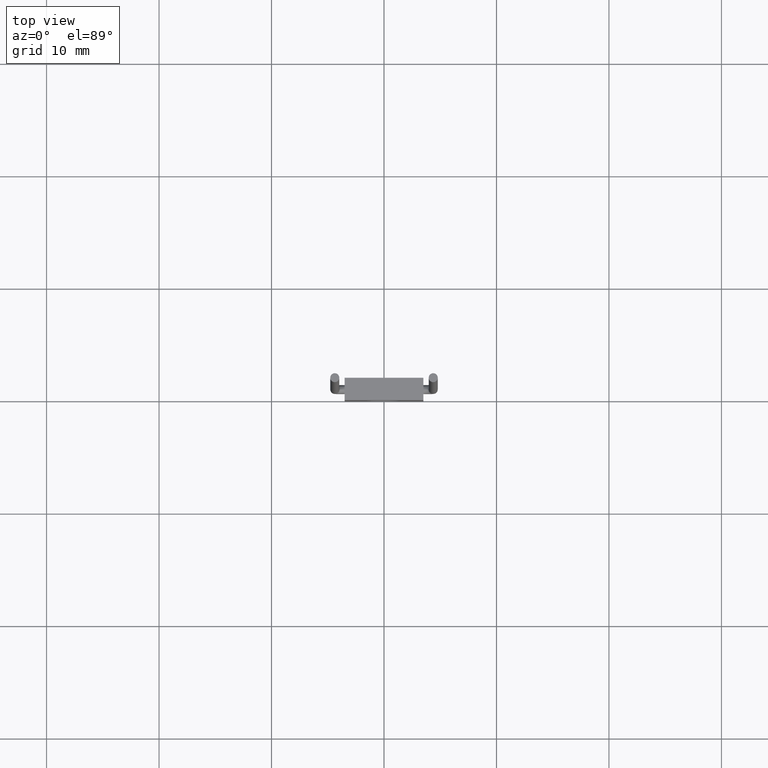
[diagram: clean part render]
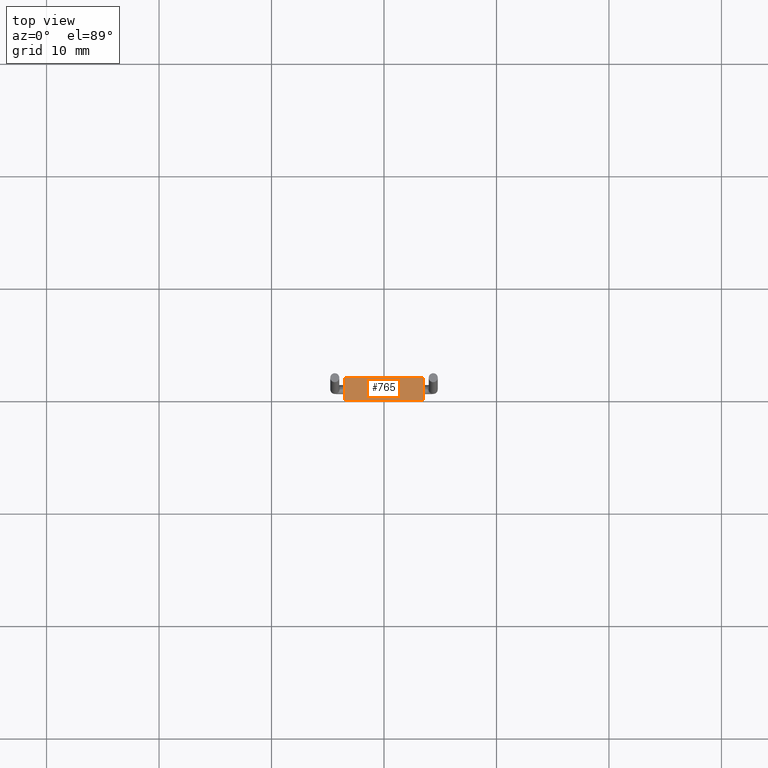
[diagram: same view with one face highlighted and labeled with its STEP entity id]
A machine part, top view. The second image highlights one B-rep face of the part: STEP entity #765.
In plain terms, the highlighted planar face has unit normal (-0, 0, -1).
Its self-contained STEP definition (entity closure, byte-faithful):
#98 = ORIENTED_EDGE ( 'NONE', *, *, #364, .F. ) ;
#109 = VERTEX_POINT ( 'NONE', #1162 ) ;
#112 = VERTEX_POINT ( 'NONE', #907 ) ;
#148 = ORIENTED_EDGE ( 'NONE', *, *, #628, .T. ) ;
#150 = LINE ( 'NONE', #867, #724 ) ;
#261 = VECTOR ( 'NONE', #503, 1000.000000000000000 ) ;
#364 = EDGE_CURVE ( 'NONE', #112, #109, #669, .T. ) ;
#379 = EDGE_LOOP ( 'NONE', ( #1002, #98, #402, #148 ) ) ;
#402 = ORIENTED_EDGE ( 'NONE', *, *, #1157, .F. ) ;
#414 = DIRECTION ( 'NONE',  ( -0.0000000000000000000, -1.000000000000000000, -0.0000000000000000000 ) ) ;
#451 = CARTESIAN_POINT ( 'NONE',  ( 3.500000000000000000, 2.000000000000000000, 3.500000000000000000 ) ) ;
#471 = EDGE_CURVE ( 'NONE', #1071, #109, #559, .T. ) ;
#479 = DIRECTION ( 'NONE',  ( -1.239088197126291300E-016, 0.0000000000000000000, -1.000000000000000000 ) ) ;
#486 = CARTESIAN_POINT ( 'NONE',  ( -3.499999999999999100, 0.0000000000000000000, 3.500000000000000900 ) ) ;
#503 = DIRECTION ( 'NONE',  ( 1.000000000000000000, 0.0000000000000000000, -1.239088197126291100E-016 ) ) ;
#559 = LINE ( 'NONE', #486, #261 ) ;
#574 = AXIS2_PLACEMENT_3D ( 'NONE', #970, #479, #1133 ) ;
#625 = DIRECTION ( 'NONE',  ( -0.0000000000000000000, -1.000000000000000000, -0.0000000000000000000 ) ) ;
#628 = EDGE_CURVE ( 'NONE', #1079, #1071, #953, .T. ) ;
#669 = LINE ( 'NONE', #451, #884 ) ;
#698 = CARTESIAN_POINT ( 'NONE',  ( -3.499999999999999100, 2.000000000000000000, 3.500000000000000900 ) ) ;
#704 = CARTESIAN_POINT ( 'NONE',  ( -3.499999999999999100, 2.000000000000000000, 3.500000000000000900 ) ) ;
#724 = VECTOR ( 'NONE', #857, 1000.000000000000000 ) ;
#725 = CARTESIAN_POINT ( 'NONE',  ( -3.499999999999999100, 0.0000000000000000000, 3.500000000000000900 ) ) ;
#728 = VECTOR ( 'NONE', #625, 1000.000000000000000 ) ;
#765 = ADVANCED_FACE ( 'NONE', ( #929 ), #815, .F. ) ;
#815 = PLANE ( 'NONE',  #574 ) ;
#857 = DIRECTION ( 'NONE',  ( 1.000000000000000000, 0.0000000000000000000, -1.239088197126291100E-016 ) ) ;
#867 = CARTESIAN_POINT ( 'NONE',  ( -3.499999999999999100, 2.000000000000000000, 3.500000000000000900 ) ) ;
#884 = VECTOR ( 'NONE', #414, 1000.000000000000000 ) ;
#907 = CARTESIAN_POINT ( 'NONE',  ( 3.500000000000000000, 2.000000000000000000, 3.500000000000000000 ) ) ;
#929 = FACE_OUTER_BOUND ( 'NONE', #379, .T. ) ;
#953 = LINE ( 'NONE', #704, #728 ) ;
#970 = CARTESIAN_POINT ( 'NONE',  ( -3.499999999999999100, 2.000000000000000000, 3.500000000000000900 ) ) ;
#1002 = ORIENTED_EDGE ( 'NONE', *, *, #471, .T. ) ;
#1071 = VERTEX_POINT ( 'NONE', #725 ) ;
#1079 = VERTEX_POINT ( 'NONE', #698 ) ;
#1133 = DIRECTION ( 'NONE',  ( -1.000000000000000000, 0.0000000000000000000, 1.239088197126291300E-016 ) ) ;
#1157 = EDGE_CURVE ( 'NONE', #1079, #112, #150, .T. ) ;
#1162 = CARTESIAN_POINT ( 'NONE',  ( 3.500000000000000000, 0.0000000000000000000, 3.500000000000000000 ) ) ;